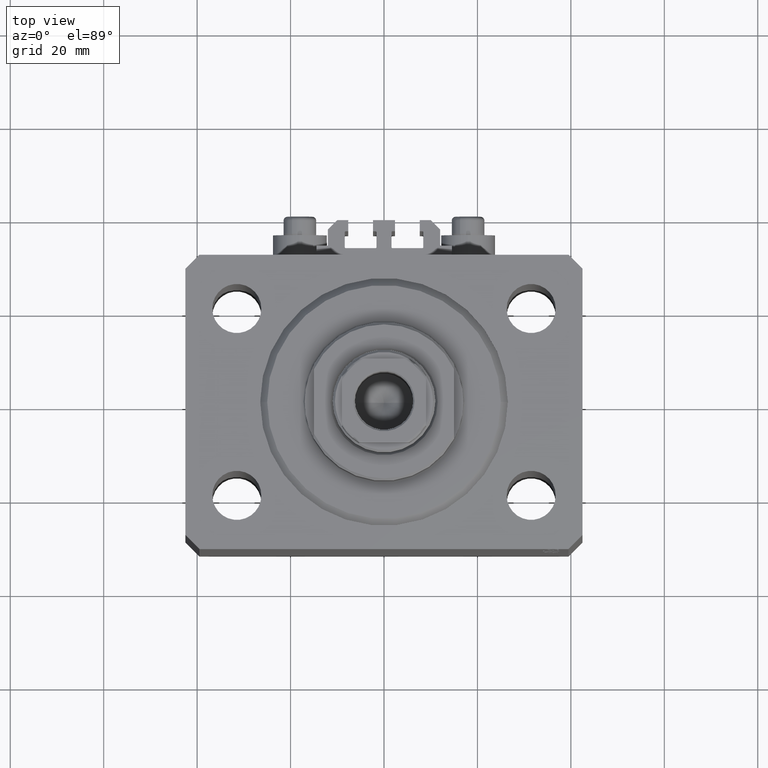
[diagram: clean part render]
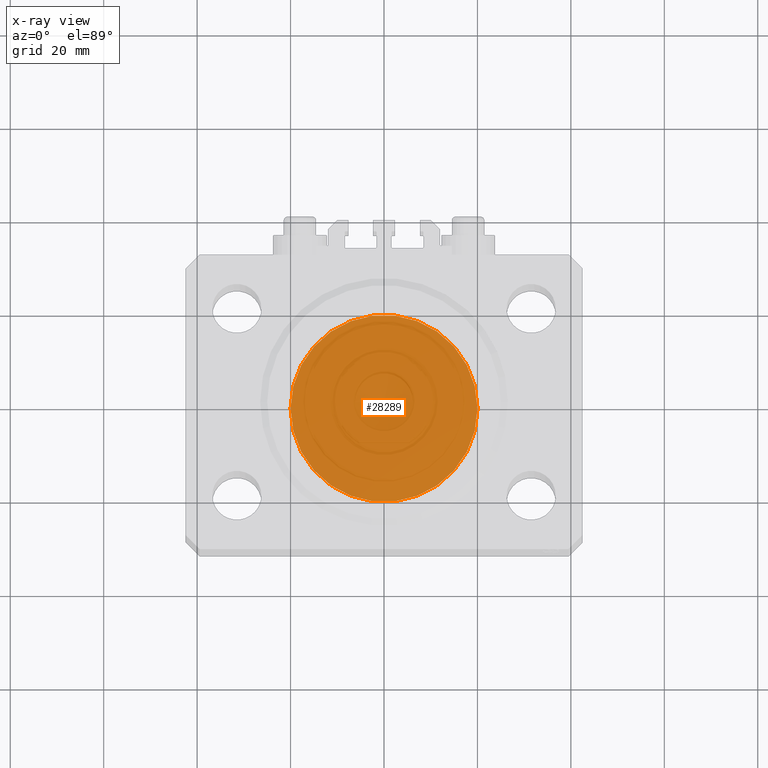
[diagram: x-ray — body ghosted, one internal face saturated and labeled with its STEP entity id]
A machine part, top view, then the same camera in x-ray: the body is ghosted and one INTERNAL B-rep face — a face not visible from any outside direction — is saturated and labeled: STEP entity #28289.
In plain terms, the highlighted planar face has unit normal (0, 0, 1).
Its self-contained STEP definition (entity closure, byte-faithful):
#609 = AXIS2_PLACEMENT_3D ( 'NONE', #44750, #11558, #30411 ) ;
#4402 = PLANE ( 'NONE',  #609 ) ;
#4676 = CARTESIAN_POINT ( 'NONE',  ( 0.000000000000000000, 0.000000000000000000, 0.000000000000000000 ) ) ;
#11558 = DIRECTION ( 'NONE',  ( 0.000000000000000000, 0.000000000000000000, 1.000000000000000000 ) ) ;
#11704 = DIRECTION ( 'NONE',  ( 1.000000000000000000, 0.000000000000000000, 0.000000000000000000 ) ) ;
#15525 = DIRECTION ( 'NONE',  ( 0.000000000000000000, 0.000000000000000000, 1.000000000000000000 ) ) ;
#20236 = CARTESIAN_POINT ( 'NONE',  ( -20.00000000000000000, 0.000000000000000000, 0.000000000000000000 ) ) ;
#20685 = EDGE_CURVE ( 'NONE', #46135, #38873, #47168, .T. ) ;
#22097 = DIRECTION ( 'NONE',  ( 0.000000000000000000, 0.000000000000000000, 1.000000000000000000 ) ) ;
#24599 = EDGE_LOOP ( 'NONE', ( #30566, #39085 ) ) ;
#26599 = AXIS2_PLACEMENT_3D ( 'NONE', #30325, #15525, #11704 ) ;
#28289 = ADVANCED_FACE ( 'NONE', ( #29947 ), #4402, .F. ) ;
#29678 = CARTESIAN_POINT ( 'NONE',  ( 20.00000000000000000, 2.449293598294706513E-15, 0.000000000000000000 ) ) ;
#29947 = FACE_OUTER_BOUND ( 'NONE', #24599, .T. ) ;
#30325 = CARTESIAN_POINT ( 'NONE',  ( 0.000000000000000000, 0.000000000000000000, 0.000000000000000000 ) ) ;
#30411 = DIRECTION ( 'NONE',  ( 1.000000000000000000, 0.000000000000000000, -0.000000000000000000 ) ) ;
#30566 = ORIENTED_EDGE ( 'NONE', *, *, #20685, .F. ) ;
#31308 = AXIS2_PLACEMENT_3D ( 'NONE', #4676, #22097, #44792 ) ;
#36942 = EDGE_CURVE ( 'NONE', #38873, #46135, #39721, .T. ) ;
#38873 = VERTEX_POINT ( 'NONE', #29678 ) ;
#39085 = ORIENTED_EDGE ( 'NONE', *, *, #36942, .F. ) ;
#39721 = CIRCLE ( 'NONE', #31308, 20.00000000000000000 ) ;
#44750 = CARTESIAN_POINT ( 'NONE',  ( 0.000000000000000000, 0.000000000000000000, 0.000000000000000000 ) ) ;
#44792 = DIRECTION ( 'NONE',  ( 1.000000000000000000, 0.000000000000000000, 0.000000000000000000 ) ) ;
#46135 = VERTEX_POINT ( 'NONE', #20236 ) ;
#47168 = CIRCLE ( 'NONE', #26599, 20.00000000000000000 ) ;